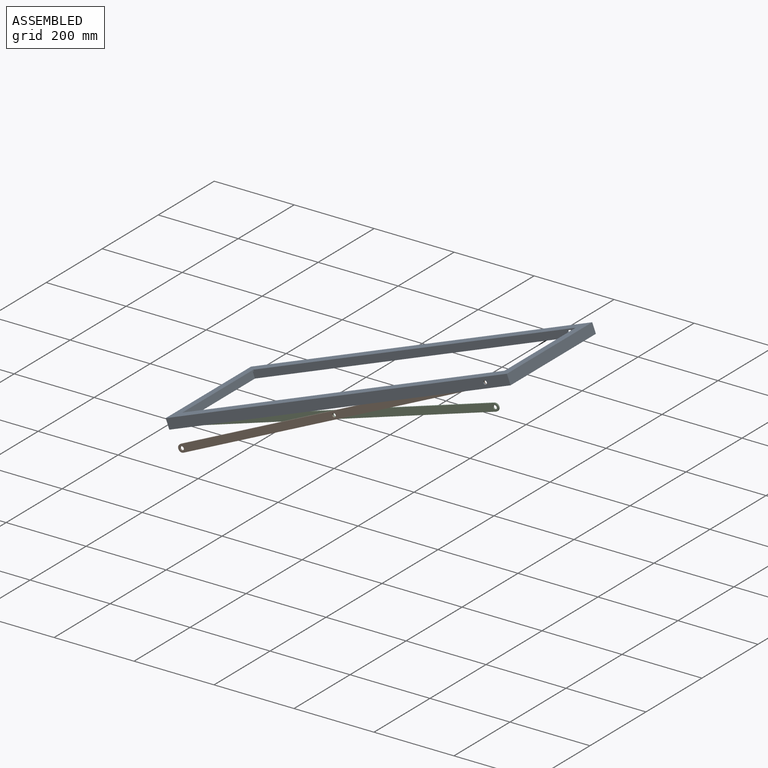
[diagram: assembled view]
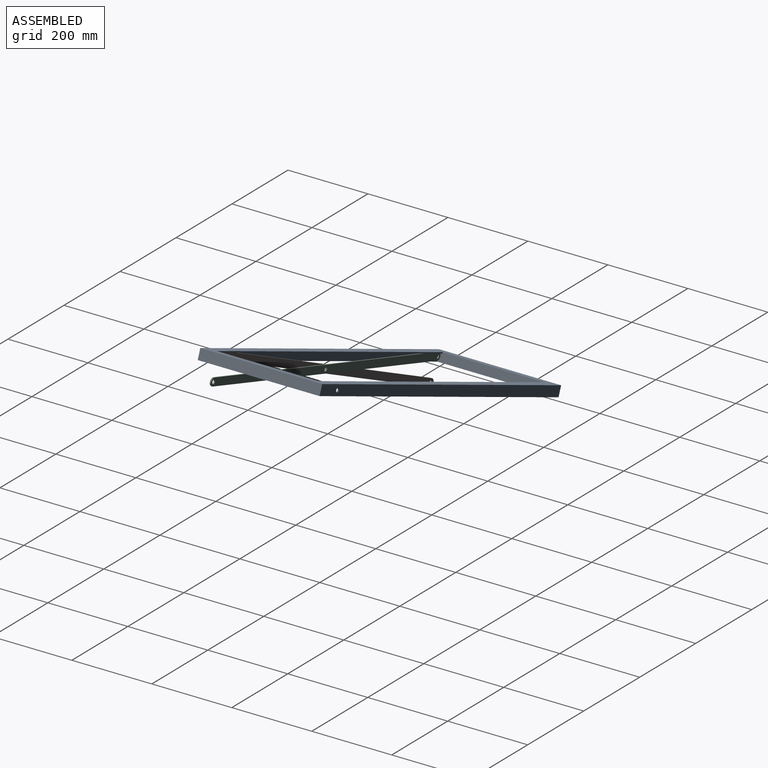
[diagram: assembled view, second angle]
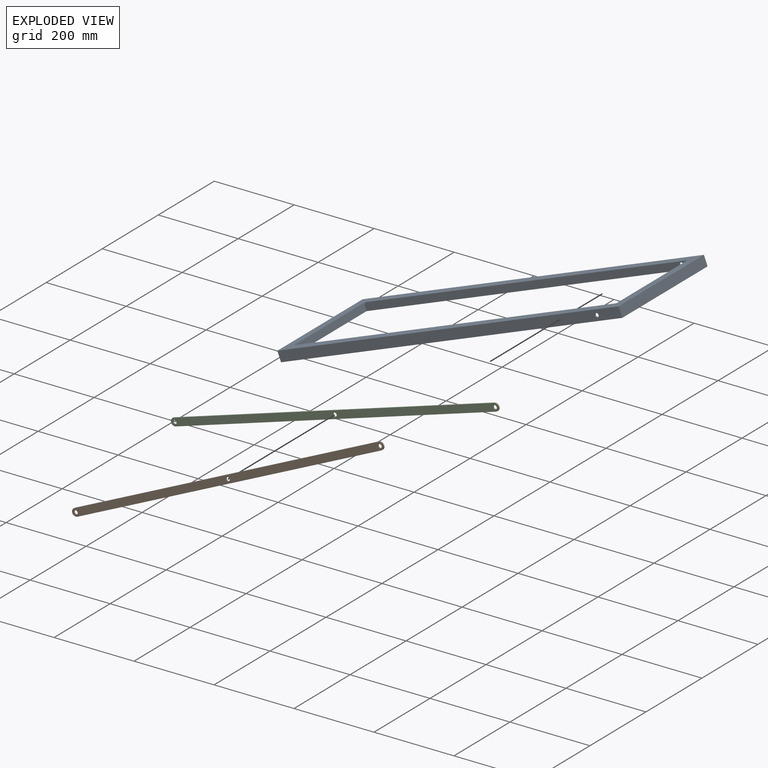
[diagram: exploded view]
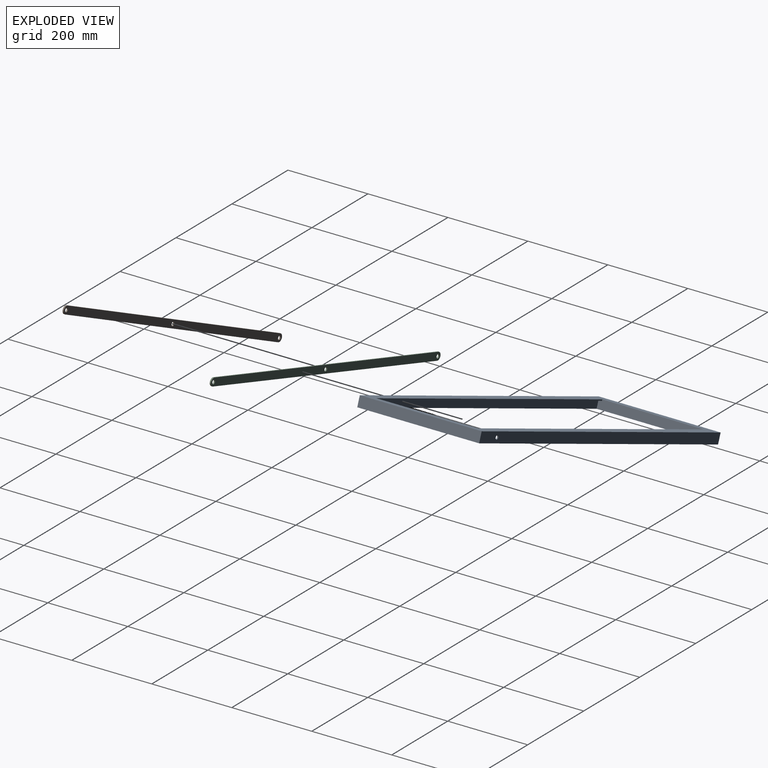
[diagram: exploded view, second angle]
ASSEMBLY  parts=3 mates=4
PART A: 17 faces, bbox 914.4x304.8x25.4 mm
  f0: plane 304.8x25.4mm, normal (1,0,0), area 7741.9mm2, adj f3,f6,f12,f13
  f1: plane 298.7x22.35mm, normal (-1,0,0), area 6676.6mm2, adj f4,f7,f10,f12
  f2: plane 254x3.05mm, normal (-1,0,0), area 774.2mm2, adj f5,f8,f10,f13
  f3: plane 914.4x25.4mm, normal (0,-1,0), area 23154.5mm2, adj f0,f9,f12,f13,f16
  f4: plane 908.3x22.35mm, normal (0,1,0), area 20231.2mm2, adj f1,f10,f11,f12,f16
  f5: plane 863.6x3.05mm, normal (0,1,0), area 2632.3mm2, adj f2,f10,f13,f14
  f6: plane 914.4x25.4mm, normal (0,1,0), area 23154.5mm2, adj f0,f9,f12,f13,f15
  f7: plane 908.3x22.35mm, normal (0,-1,0), area 20231.2mm2, adj f1,f10,f11,f12,f15
  f8: plane 863.6x3.05mm, normal (0,-1,0), area 2632.3mm2, adj f2,f10,f13,f14
  f9: plane 304.8x25.4mm, normal (-1,0,0), area 7741.9mm2, adj f3,f6,f12,f13
  f10: plane 908.3x298.7mm, normal (0,0,-1), area 51959.6mm2, adj f1,f2,f4,f5,f7,f8,f11,f14
  f11: plane 298.7x22.35mm, normal (1,0,0), area 6676.6mm2, adj f4,f7,f10,f12
  f12: plane 914.4x304.8mm, normal (0,0,-1), area 7395.1mm2, adj f0,f1,f3,f4,f6,f7,f9,f11
  f13: plane 914.4x304.8mm, normal (0,0,1), area 59354.7mm2, adj f0,f2,f3,f5,f6,f8,f9,f14
  f14: plane 254x3.05mm, normal (1,0,0), area 774.2mm2, adj f5,f8,f10,f13
  f15: cylinder r=4.76mm len=9.53mm, axis (0,-1,0), area 91.2mm2, adj f6,f7
  f16: cylinder r=4.76mm len=9.53mm, axis (0,-1,0), area 91.2mm2, adj f3,f4
PART B: 9 faces, bbox 857.3x3.2x19.1 mm
  f0: cylinder r=9.53mm len=19.05mm, axis (0,1,0), area 95mm2, adj f1,f6,f7,f8
  f1: plane 838.2x3.18mm, normal (0,0,1), area 2661.3mm2, adj f0,f2,f7,f8
  f2: cylinder r=9.53mm len=19.05mm, axis (0,1,0), area 95mm2, adj f1,f6,f7,f8
  f3: cylinder r=4.76mm len=9.53mm, axis (0,1,0), area 95mm2, adj f7,f8
  f4: cylinder r=4.76mm len=9.53mm, axis (0,1,0), area 95mm2, adj f7,f8
  f5: cylinder r=4.76mm len=9.53mm, axis (0,1,0), area 95mm2, adj f7,f8
  f6: plane 838.2x3.18mm, normal (0,0,-1), area 2661.3mm2, adj f0,f2,f7,f8
  f7: plane 857.25x19.05mm, normal (0,-1,0), area 16039mm2, adj f0,f1,f2,f3,f4,f5,f6
  f8: plane 857.25x19.05mm, normal (0,1,0), area 16039mm2, adj f0,f1,f2,f3,f4,f5,f6
PART C: same geometry as B
PLACE A rot(axis=(0,-1,0),21.1deg) t=(-92.82,-145.11,-7.19)mm fixed
PLACE B rot(axis=(0,1,0),155.1deg) t=(-100.93,-138.88,-54.17)mm
PLACE C rot(axis=(0,1,0),162.8deg) t=(-100.93,-135.71,-54.17)mm
MATE cylindrical B.f5 <-> C.f5  axis (0,1,0) through (-100.93,-142.06,-54.17)mm
MATE cylindrical A.f15 <-> B.f2  axis (0,1,0) through (279.15,-142.06,122.43)mm
MATE planar B.f5 <-> C.f5  axis (0,1,0) through (-100.93,-138.88,-54.17)mm
MATE planar A.f4 <-> B.f5  axis (0,1,0) through (-89,-142.06,-20.97)mm
